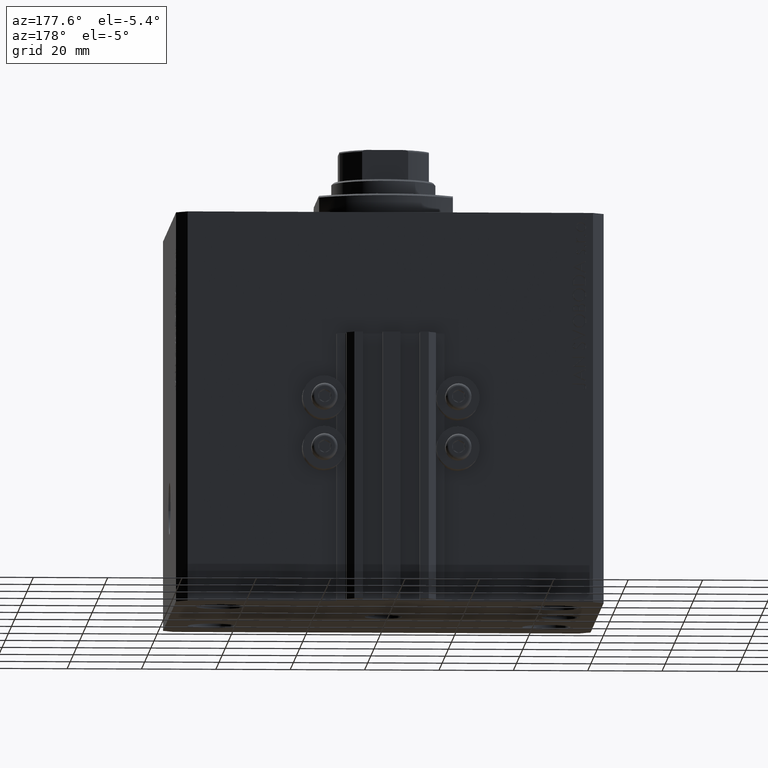
[diagram: clean part render]
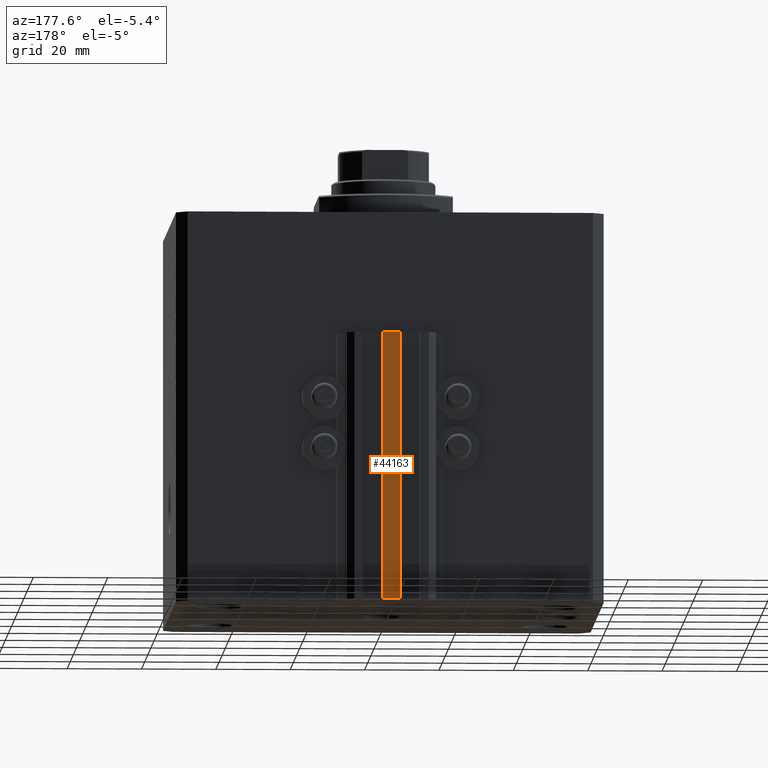
[diagram: same view with one face highlighted and labeled with its STEP entity id]
A machine part, auxiliary view. The second image highlights one B-rep face of the part: STEP entity #44163.
In plain terms, the highlighted planar face has unit normal (0, -1, 0).
Its self-contained STEP definition (entity closure, byte-faithful):
#604 = EDGE_LOOP ( 'NONE', ( #38442, #14285, #12148, #44864 ) ) ;
#1066 = AXIS2_PLACEMENT_3D ( 'NONE', #44587, #43866, #11994 ) ;
#2640 = CARTESIAN_POINT ( 'NONE',  ( -2.350000000000003642, 53.00000000000000000, -105.0000000000000000 ) ) ;
#3795 = VERTEX_POINT ( 'NONE', #17324 ) ;
#5585 = EDGE_CURVE ( 'NONE', #16272, #44900, #16467, .T. ) ;
#7422 = CARTESIAN_POINT ( 'NONE',  ( -2.350000000000003642, 53.00000000000000000, -33.00000000000000000 ) ) ;
#10023 = CARTESIAN_POINT ( 'NONE',  ( 2.349999999999999645, 53.00000000000000000, -105.0000000000000000 ) ) ;
#10498 = LINE ( 'NONE', #10023, #25452 ) ;
#11994 = DIRECTION ( 'NONE',  ( 0.000000000000000000, -0.000000000000000000, -1.000000000000000000 ) ) ;
#12148 = ORIENTED_EDGE ( 'NONE', *, *, #42372, .F. ) ;
#12477 = VERTEX_POINT ( 'NONE', #18070 ) ;
#14285 = ORIENTED_EDGE ( 'NONE', *, *, #38108, .F. ) ;
#16272 = VERTEX_POINT ( 'NONE', #34593 ) ;
#16467 = LINE ( 'NONE', #31073, #40965 ) ;
#17324 = CARTESIAN_POINT ( 'NONE',  ( 2.349999999999999645, 53.00000000000000000, -105.0000000000000000 ) ) ;
#18070 = CARTESIAN_POINT ( 'NONE',  ( 2.349999999999999645, 53.00000000000000000, -33.00000000000000000 ) ) ;
#21541 = DIRECTION ( 'NONE',  ( 1.000000000000000000, 0.000000000000000000, 0.000000000000000000 ) ) ;
#22490 = CARTESIAN_POINT ( 'NONE',  ( -2.350000000000003642, 53.00000000000000000, -33.00000000000000000 ) ) ;
#22545 = PLANE ( 'NONE',  #1066 ) ;
#25235 = EDGE_CURVE ( 'NONE', #44900, #12477, #33524, .T. ) ;
#25452 = VECTOR ( 'NONE', #42380, 1000.000000000000000 ) ;
#27482 = DIRECTION ( 'NONE',  ( 0.000000000000000000, 0.000000000000000000, 1.000000000000000000 ) ) ;
#28017 = LINE ( 'NONE', #2640, #30089 ) ;
#28120 = VECTOR ( 'NONE', #21541, 1000.000000000000000 ) ;
#30089 = VECTOR ( 'NONE', #36167, 1000.000000000000000 ) ;
#31073 = CARTESIAN_POINT ( 'NONE',  ( -2.350000000000003642, 53.00000000000000000, -105.0000000000000000 ) ) ;
#33524 = LINE ( 'NONE', #7422, #28120 ) ;
#34593 = CARTESIAN_POINT ( 'NONE',  ( -2.350000000000003642, 53.00000000000000000, -105.0000000000000000 ) ) ;
#36167 = DIRECTION ( 'NONE',  ( 1.000000000000000000, 0.000000000000000000, 0.000000000000000000 ) ) ;
#38108 = EDGE_CURVE ( 'NONE', #3795, #12477, #10498, .T. ) ;
#38442 = ORIENTED_EDGE ( 'NONE', *, *, #25235, .T. ) ;
#40965 = VECTOR ( 'NONE', #27482, 1000.000000000000000 ) ;
#42372 = EDGE_CURVE ( 'NONE', #16272, #3795, #28017, .T. ) ;
#42380 = DIRECTION ( 'NONE',  ( 0.000000000000000000, 0.000000000000000000, 1.000000000000000000 ) ) ;
#43866 = DIRECTION ( 'NONE',  ( 0.000000000000000000, -1.000000000000000000, 0.000000000000000000 ) ) ;
#44163 = ADVANCED_FACE ( 'NONE', ( #44825 ), #22545, .F. ) ;
#44587 = CARTESIAN_POINT ( 'NONE',  ( -2.350000000000003642, 53.00000000000000000, -105.0000000000000000 ) ) ;
#44825 = FACE_OUTER_BOUND ( 'NONE', #604, .T. ) ;
#44864 = ORIENTED_EDGE ( 'NONE', *, *, #5585, .T. ) ;
#44900 = VERTEX_POINT ( 'NONE', #22490 ) ;